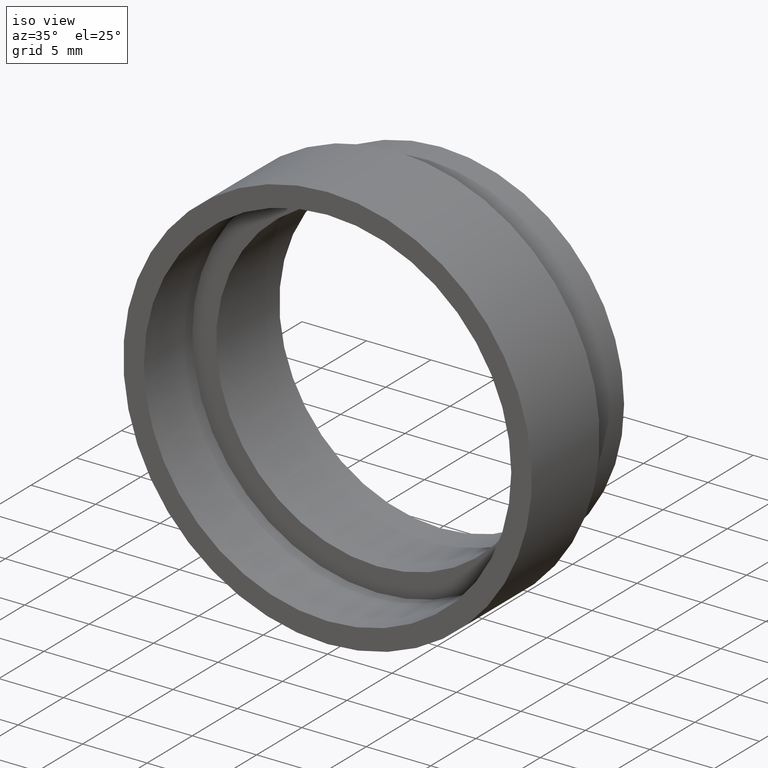
[diagram: clean part render]
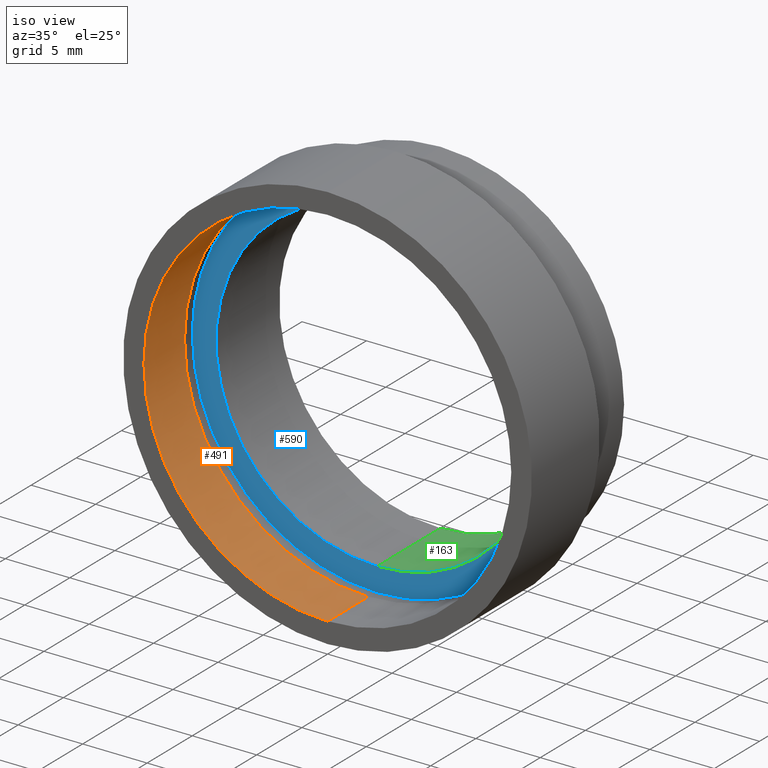
[diagram: same view with three faces highlighted in distinct colors, each labeled with its STEP entity id]
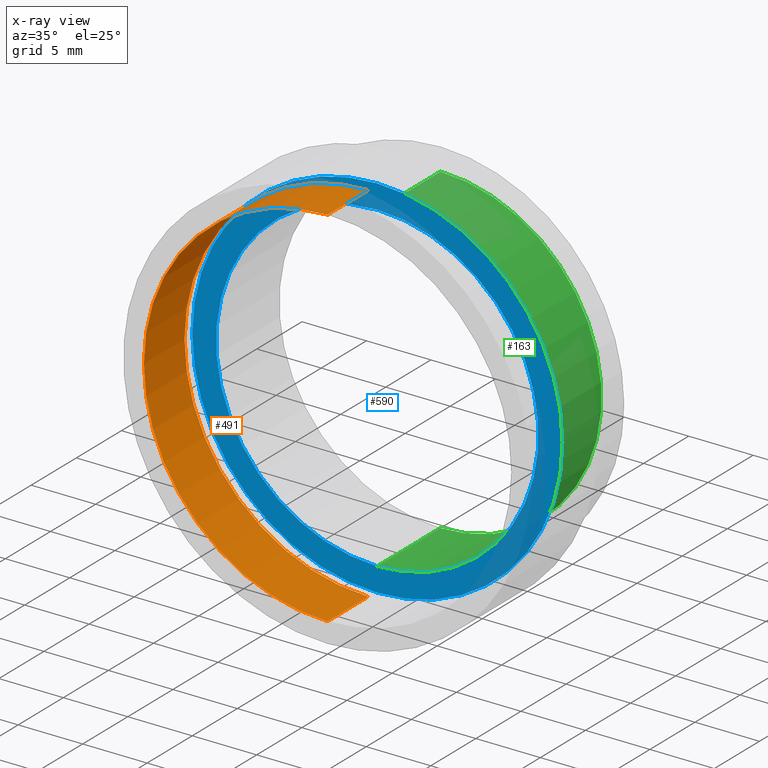
[diagram: x-ray of the same camera — body ghosted, the three highlighted faces saturated]
A machine part, iso view with three faces highlighted in distinct colors.
The next image is the same camera in x-ray (body ghosted, the three faces saturated) — at least one of them is partly hidden behind the body in this view.
Their STEP definitions:

[orange] entity #491 — the highlighted cylindrical surface (partial cylindrical patch) has radius 14.25 mm, axis along (-0, 1, -0).
#53 = LINE ( 'NONE', #566, #327 ) ;
#65 = ORIENTED_EDGE ( 'NONE', *, *, #620, .F. ) ;
#76 = EDGE_CURVE ( 'NONE', #223, #576, #80, .T. ) ;
#80 = LINE ( 'NONE', #457, #356 ) ;
#101 = CYLINDRICAL_SURFACE ( 'NONE', #172, 14.25000000000000000 ) ;
#102 = CARTESIAN_POINT ( 'NONE',  ( 0.0000000000000000000, 2.775557561562891400E-014, 0.0000000000000000000 ) ) ;
#110 = DIRECTION ( 'NONE',  ( -0.0000000000000000000, 1.000000000000000000, -0.0000000000000000000 ) ) ;
#144 = ORIENTED_EDGE ( 'NONE', *, *, #76, .T. ) ;
#146 = CARTESIAN_POINT ( 'NONE',  ( 1.745121688784978200E-015, 4.500000000000032000, -14.25000000000000000 ) ) ;
#149 = CARTESIAN_POINT ( 'NONE',  ( 0.0000000000000000000, 4.500000000000032000, 14.25000000000000000 ) ) ;
#154 = CARTESIAN_POINT ( 'NONE',  ( 0.0000000000000000000, 2.775557561562891400E-014, 14.25000000000000000 ) ) ;
#161 = CARTESIAN_POINT ( 'NONE',  ( 0.0000000000000000000, 161.3761669434274500, 0.0000000000000000000 ) ) ;
#172 = AXIS2_PLACEMENT_3D ( 'NONE', #161, #110, #493 ) ;
#215 = VERTEX_POINT ( 'NONE', #149 ) ;
#223 = VERTEX_POINT ( 'NONE', #387 ) ;
#234 = DIRECTION ( 'NONE',  ( -0.0000000000000000000, 1.000000000000000000, -0.0000000000000000000 ) ) ;
#253 = FACE_OUTER_BOUND ( 'NONE', #480, .T. ) ;
#286 = EDGE_CURVE ( 'NONE', #223, #366, #364, .T. ) ;
#327 = VECTOR ( 'NONE', #234, 1000.000000000000000 ) ;
#328 = AXIS2_PLACEMENT_3D ( 'NONE', #406, #537, #450 ) ;
#356 = VECTOR ( 'NONE', #377, 1000.000000000000000 ) ;
#364 = CIRCLE ( 'NONE', #435, 14.25000000000000000 ) ;
#366 = VERTEX_POINT ( 'NONE', #154 ) ;
#377 = DIRECTION ( 'NONE',  ( -0.0000000000000000000, 1.000000000000000000, -0.0000000000000000000 ) ) ;
#383 = CIRCLE ( 'NONE', #328, 14.25000000000000000 ) ;
#387 = CARTESIAN_POINT ( 'NONE',  ( 1.745121688784978200E-015, 2.775557561562891400E-014, -14.25000000000000000 ) ) ;
#394 = DIRECTION ( 'NONE',  ( -0.0000000000000000000, 1.000000000000000000, -0.0000000000000000000 ) ) ;
#406 = CARTESIAN_POINT ( 'NONE',  ( 0.0000000000000000000, 4.500000000000032000, 0.0000000000000000000 ) ) ;
#435 = AXIS2_PLACEMENT_3D ( 'NONE', #102, #394, #436 ) ;
#436 = DIRECTION ( 'NONE',  ( 0.0000000000000000000, 0.0000000000000000000, 1.000000000000000000 ) ) ;
#450 = DIRECTION ( 'NONE',  ( 0.0000000000000000000, 0.0000000000000000000, 1.000000000000000000 ) ) ;
#455 = ORIENTED_EDGE ( 'NONE', *, *, #286, .F. ) ;
#457 = CARTESIAN_POINT ( 'NONE',  ( 1.745121688784978200E-015, 161.3761669434274500, -14.25000000000000000 ) ) ;
#480 = EDGE_LOOP ( 'NONE', ( #455, #144, #562, #65 ) ) ;
#490 = EDGE_CURVE ( 'NONE', #576, #215, #383, .T. ) ;
#491 = ADVANCED_FACE ( 'NONE', ( #253 ), #101, .F. ) ;
#493 = DIRECTION ( 'NONE',  ( 0.0000000000000000000, 0.0000000000000000000, 1.000000000000000000 ) ) ;
#537 = DIRECTION ( 'NONE',  ( -0.0000000000000000000, 1.000000000000000000, -0.0000000000000000000 ) ) ;
#562 = ORIENTED_EDGE ( 'NONE', *, *, #490, .T. ) ;
#566 = CARTESIAN_POINT ( 'NONE',  ( 0.0000000000000000000, 161.3761669434274500, 14.25000000000000000 ) ) ;
#576 = VERTEX_POINT ( 'NONE', #146 ) ;
#620 = EDGE_CURVE ( 'NONE', #366, #215, #53, .T. ) ;

[blue] entity #590 — the highlighted planar face has unit normal (-0, 1, 0).
#4 = DIRECTION ( 'NONE',  ( 0.0000000000000000000, 0.0000000000000000000, 1.000000000000000000 ) ) ;
#14 = AXIS2_PLACEMENT_3D ( 'NONE', #413, #81, #414 ) ;
#51 = CARTESIAN_POINT ( 'NONE',  ( 1.530808498934193900E-015, 5.499999999999976900, -12.50000000000002000 ) ) ;
#62 = EDGE_CURVE ( 'NONE', #314, #84, #402, .T. ) ;
#81 = DIRECTION ( 'NONE',  ( -0.0000000000000000000, 1.000000000000000000, -0.0000000000000000000 ) ) ;
#84 = VERTEX_POINT ( 'NONE', #505 ) ;
#103 = AXIS2_PLACEMENT_3D ( 'NONE', #236, #515, #568 ) ;
#150 = DIRECTION ( 'NONE',  ( -0.0000000000000000000, 1.000000000000000000, -0.0000000000000000000 ) ) ;
#181 = CARTESIAN_POINT ( 'NONE',  ( 12.50000000000002000, 5.499999999999984000, 0.0000000000000000000 ) ) ;
#207 = ORIENTED_EDGE ( 'NONE', *, *, #555, .F. ) ;
#229 = PLANE ( 'NONE',  #444 ) ;
#231 = VERTEX_POINT ( 'NONE', #297 ) ;
#236 = CARTESIAN_POINT ( 'NONE',  ( 0.0000000000000000000, 5.499999999999976900, 0.0000000000000000000 ) ) ;
#241 = VERTEX_POINT ( 'NONE', #51 ) ;
#250 = CARTESIAN_POINT ( 'NONE',  ( 0.0000000000000000000, 5.499999999999976900, 0.0000000000000000000 ) ) ;
#259 = ORIENTED_EDGE ( 'NONE', *, *, #462, .T. ) ;
#297 = CARTESIAN_POINT ( 'NONE',  ( 0.0000000000000000000, 5.499999999999976900, 12.50000000000002000 ) ) ;
#314 = VERTEX_POINT ( 'NONE', #348 ) ;
#348 = CARTESIAN_POINT ( 'NONE',  ( 1.757368156776454300E-015, 5.499999999999976900, -14.35000000000001900 ) ) ;
#373 = ORIENTED_EDGE ( 'NONE', *, *, #62, .F. ) ;
#392 = CIRCLE ( 'NONE', #469, 12.50000000000002000 ) ;
#393 = DIRECTION ( 'NONE',  ( -0.0000000000000000000, 1.000000000000000000, 0.0000000000000000000 ) ) ;
#402 = CIRCLE ( 'NONE', #14, 14.35000000000001900 ) ;
#413 = CARTESIAN_POINT ( 'NONE',  ( 0.0000000000000000000, 5.499999999999976900, 0.0000000000000000000 ) ) ;
#414 = DIRECTION ( 'NONE',  ( 0.0000000000000000000, 0.0000000000000000000, 1.000000000000000000 ) ) ;
#430 = EDGE_CURVE ( 'NONE', #231, #241, #501, .T. ) ;
#437 = AXIS2_PLACEMENT_3D ( 'NONE', #534, #150, #4 ) ;
#444 = AXIS2_PLACEMENT_3D ( 'NONE', #181, #393, #518 ) ;
#447 = EDGE_LOOP ( 'NONE', ( #569, #259 ) ) ;
#451 = EDGE_LOOP ( 'NONE', ( #207, #373 ) ) ;
#462 = EDGE_CURVE ( 'NONE', #241, #231, #392, .T. ) ;
#469 = AXIS2_PLACEMENT_3D ( 'NONE', #250, #580, #578 ) ;
#471 = FACE_BOUND ( 'NONE', #447, .T. ) ;
#487 = CIRCLE ( 'NONE', #103, 14.35000000000001900 ) ;
#501 = CIRCLE ( 'NONE', #437, 12.50000000000002000 ) ;
#505 = CARTESIAN_POINT ( 'NONE',  ( 0.0000000000000000000, 5.499999999999976900, 14.35000000000001900 ) ) ;
#515 = DIRECTION ( 'NONE',  ( -0.0000000000000000000, 1.000000000000000000, -0.0000000000000000000 ) ) ;
#518 = DIRECTION ( 'NONE',  ( 0.0000000000000000000, 0.0000000000000000000, 1.000000000000000000 ) ) ;
#534 = CARTESIAN_POINT ( 'NONE',  ( 0.0000000000000000000, 5.499999999999976900, 0.0000000000000000000 ) ) ;
#555 = EDGE_CURVE ( 'NONE', #84, #314, #487, .T. ) ;
#568 = DIRECTION ( 'NONE',  ( 0.0000000000000000000, 0.0000000000000000000, 1.000000000000000000 ) ) ;
#569 = ORIENTED_EDGE ( 'NONE', *, *, #430, .T. ) ;
#578 = DIRECTION ( 'NONE',  ( 0.0000000000000000000, 0.0000000000000000000, 1.000000000000000000 ) ) ;
#580 = DIRECTION ( 'NONE',  ( -0.0000000000000000000, 1.000000000000000000, -0.0000000000000000000 ) ) ;
#590 = ADVANCED_FACE ( 'NONE', ( #613, #471 ), #229, .F. ) ;
#613 = FACE_OUTER_BOUND ( 'NONE', #451, .T. ) ;

[green] entity #163 — the highlighted cylindrical surface (partial cylindrical patch) has radius 12.5 mm, axis along (-0, 1, -0).
#4 = DIRECTION ( 'NONE',  ( 0.0000000000000000000, 0.0000000000000000000, 1.000000000000000000 ) ) ;
#10 = DIRECTION ( 'NONE',  ( 0.0000000000000000000, 0.0000000000000000000, 1.000000000000000000 ) ) ;
#51 = CARTESIAN_POINT ( 'NONE',  ( 1.530808498934193900E-015, 5.499999999999976900, -12.50000000000002000 ) ) ;
#73 = ORIENTED_EDGE ( 'NONE', *, *, #372, .T. ) ;
#89 = DIRECTION ( 'NONE',  ( -0.0000000000000000000, 1.000000000000000000, -0.0000000000000000000 ) ) ;
#127 = CARTESIAN_POINT ( 'NONE',  ( 0.0000000000000000000, 161.3761669434274500, 0.0000000000000000000 ) ) ;
#130 = ORIENTED_EDGE ( 'NONE', *, *, #430, .F. ) ;
#136 = FACE_OUTER_BOUND ( 'NONE', #470, .T. ) ;
#150 = DIRECTION ( 'NONE',  ( -0.0000000000000000000, 1.000000000000000000, -0.0000000000000000000 ) ) ;
#156 = CARTESIAN_POINT ( 'NONE',  ( 1.530808498934193900E-015, 161.3761669434274500, -12.50000000000002000 ) ) ;
#163 = ADVANCED_FACE ( 'NONE', ( #136 ), #165, .F. ) ;
#165 = CYLINDRICAL_SURFACE ( 'NONE', #526, 12.50000000000002000 ) ;
#170 = VERTEX_POINT ( 'NONE', #421 ) ;
#180 = LINE ( 'NONE', #156, #425 ) ;
#231 = VERTEX_POINT ( 'NONE', #297 ) ;
#241 = VERTEX_POINT ( 'NONE', #51 ) ;
#251 = DIRECTION ( 'NONE',  ( -0.0000000000000000000, 1.000000000000000000, -0.0000000000000000000 ) ) ;
#274 = DIRECTION ( 'NONE',  ( 0.0000000000000000000, 0.0000000000000000000, 1.000000000000000000 ) ) ;
#297 = CARTESIAN_POINT ( 'NONE',  ( 0.0000000000000000000, 5.499999999999976900, 12.50000000000002000 ) ) ;
#303 = CARTESIAN_POINT ( 'NONE',  ( 0.0000000000000000000, 12.49999999999998400, 0.0000000000000000000 ) ) ;
#308 = ORIENTED_EDGE ( 'NONE', *, *, #332, .T. ) ;
#317 = ORIENTED_EDGE ( 'NONE', *, *, #415, .F. ) ;
#332 = EDGE_CURVE ( 'NONE', #231, #440, #460, .T. ) ;
#347 = CARTESIAN_POINT ( 'NONE',  ( 0.0000000000000000000, 12.49999999999998400, 12.50000000000002000 ) ) ;
#372 = EDGE_CURVE ( 'NONE', #440, #170, #611, .T. ) ;
#415 = EDGE_CURVE ( 'NONE', #241, #170, #180, .T. ) ;
#421 = CARTESIAN_POINT ( 'NONE',  ( 1.530808498934193900E-015, 12.49999999999998400, -12.50000000000002000 ) ) ;
#425 = VECTOR ( 'NONE', #251, 1000.000000000000000 ) ;
#430 = EDGE_CURVE ( 'NONE', #231, #241, #501, .T. ) ;
#437 = AXIS2_PLACEMENT_3D ( 'NONE', #534, #150, #4 ) ;
#440 = VERTEX_POINT ( 'NONE', #347 ) ;
#443 = DIRECTION ( 'NONE',  ( -0.0000000000000000000, 1.000000000000000000, -0.0000000000000000000 ) ) ;
#460 = LINE ( 'NONE', #617, #556 ) ;
#466 = DIRECTION ( 'NONE',  ( -0.0000000000000000000, 1.000000000000000000, -0.0000000000000000000 ) ) ;
#470 = EDGE_LOOP ( 'NONE', ( #317, #130, #308, #73 ) ) ;
#501 = CIRCLE ( 'NONE', #437, 12.50000000000002000 ) ;
#526 = AXIS2_PLACEMENT_3D ( 'NONE', #127, #466, #274 ) ;
#534 = CARTESIAN_POINT ( 'NONE',  ( 0.0000000000000000000, 5.499999999999976900, 0.0000000000000000000 ) ) ;
#556 = VECTOR ( 'NONE', #89, 1000.000000000000000 ) ;
#581 = AXIS2_PLACEMENT_3D ( 'NONE', #303, #443, #10 ) ;
#611 = CIRCLE ( 'NONE', #581, 12.50000000000002000 ) ;
#617 = CARTESIAN_POINT ( 'NONE',  ( 0.0000000000000000000, 161.3761669434274500, 12.50000000000002000 ) ) ;